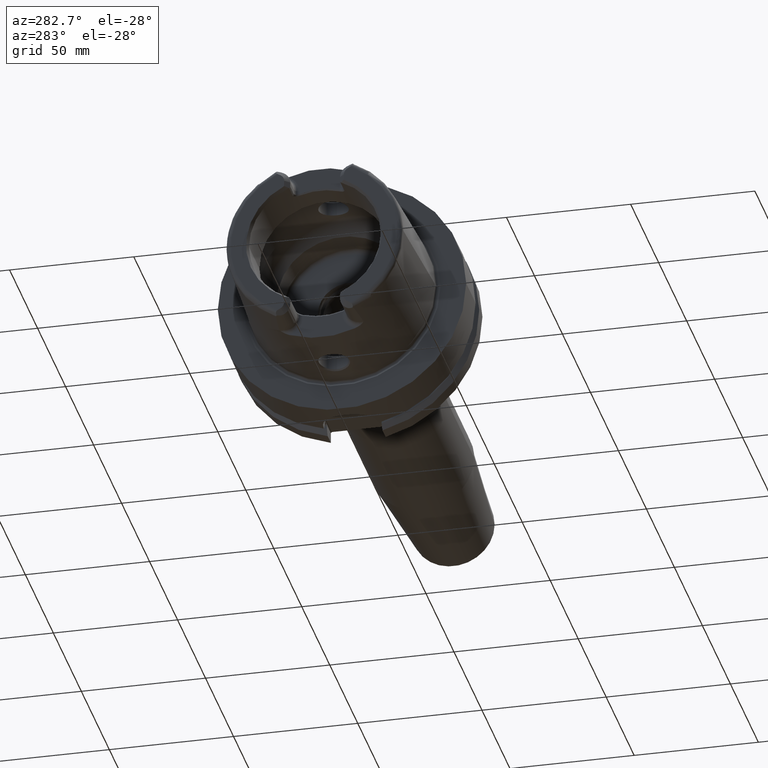
[diagram: clean part render]
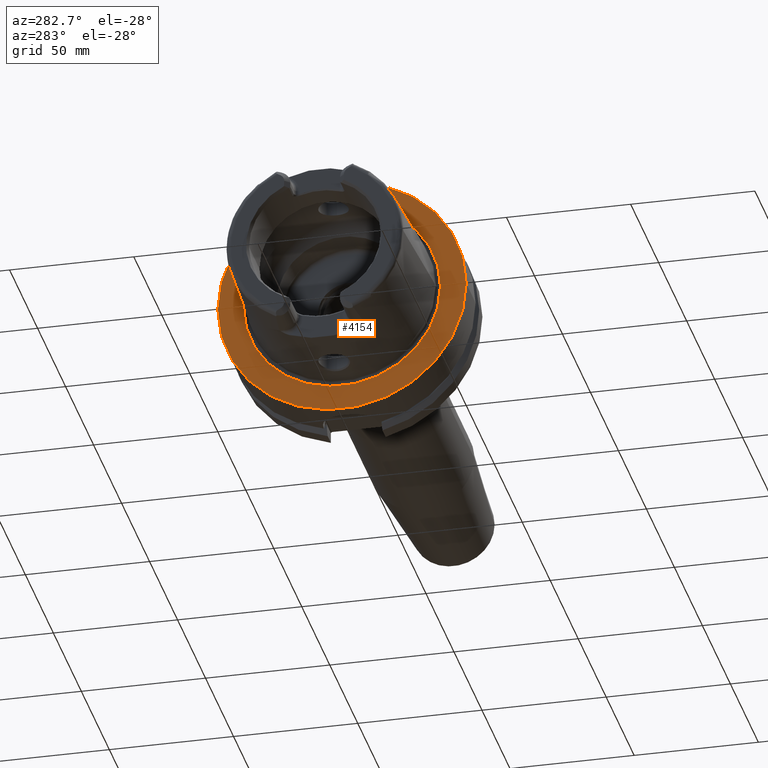
[diagram: same view with one face highlighted and labeled with its STEP entity id]
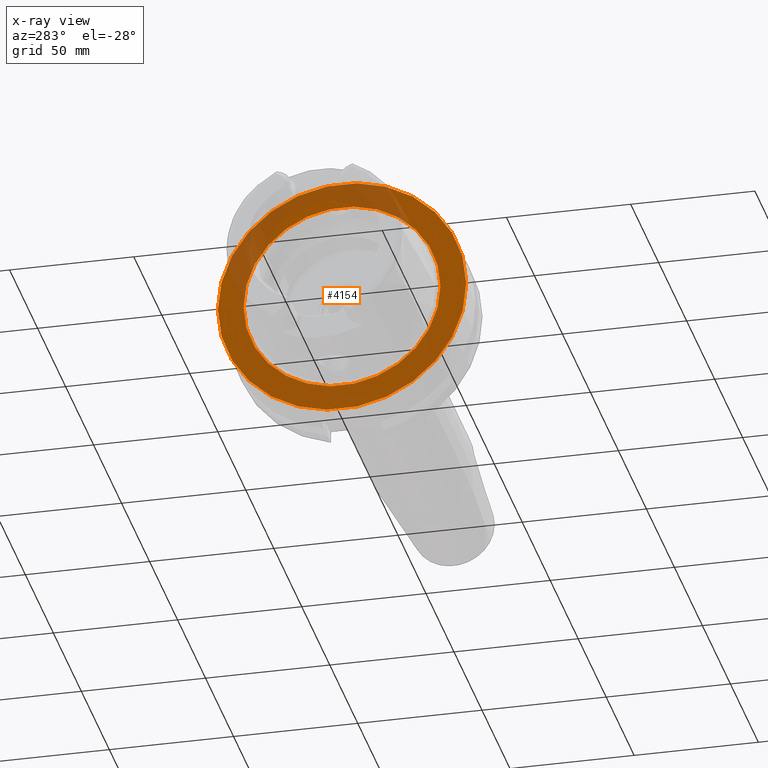
[diagram: x-ray of the same camera — body ghosted, the highlighted face saturated]
A machine part, auxiliary view. The second image highlights one B-rep face of the part: STEP entity #4154.
The next image is the same camera in x-ray: the body ghosted, the highlighted face saturated — about 25% of this face is hidden behind the body in this view.
In plain terms, the highlighted planar face has unit normal (1, 0, 0).
Its self-contained STEP definition (entity closure, byte-faithful):
#905=CARTESIAN_POINT('',(2.842170943040E-14,0.E0,0.E0));
#906=DIRECTION('',(1.E0,0.E0,0.E0));
#907=DIRECTION('',(0.E0,1.E0,0.E0));
#908=AXIS2_PLACEMENT_3D('',#905,#906,#907);
#910=CARTESIAN_POINT('',(2.842170943040E-14,0.E0,0.E0));
#911=DIRECTION('',(-1.E0,0.E0,0.E0));
#912=DIRECTION('',(0.E0,1.E0,0.E0));
#913=AXIS2_PLACEMENT_3D('',#910,#911,#912);
#915=CARTESIAN_POINT('',(0.E0,0.E0,0.E0));
#916=DIRECTION('',(-1.E0,0.E0,0.E0));
#917=DIRECTION('',(0.E0,-1.E0,0.E0));
#918=AXIS2_PLACEMENT_3D('',#915,#916,#917);
#920=CARTESIAN_POINT('',(0.E0,0.E0,0.E0));
#921=DIRECTION('',(-1.E0,0.E0,0.E0));
#922=DIRECTION('',(0.E0,1.E0,0.E0));
#923=AXIS2_PLACEMENT_3D('',#920,#921,#922);
#2713=CARTESIAN_POINT('',(2.842170943040E-14,5.E1,0.E0));
#2714=CARTESIAN_POINT('',(2.842170943040E-14,-5.E1,0.E0));
#2715=VERTEX_POINT('',#2713);
#2716=VERTEX_POINT('',#2714);
#2741=CARTESIAN_POINT('',(0.E0,-3.963225E1,0.E0));
#2742=VERTEX_POINT('',#2741);
#2743=CARTESIAN_POINT('',(0.E0,3.963225E1,0.E0));
#2744=VERTEX_POINT('',#2743);
#4139=CARTESIAN_POINT('',(0.E0,0.E0,0.E0));
#4140=DIRECTION('',(1.E0,0.E0,0.E0));
#4141=DIRECTION('',(0.E0,-1.E0,0.E0));
#4142=AXIS2_PLACEMENT_3D('',#4139,#4140,#4141);
#4143=PLANE('',#4142);
#4145=ORIENTED_EDGE('',*,*,#4144,.T.);
#4147=ORIENTED_EDGE('',*,*,#4146,.F.);
#4148=EDGE_LOOP('',(#4145,#4147));
#4149=FACE_OUTER_BOUND('',#4148,.F.);
#4150=ORIENTED_EDGE('',*,*,#4134,.T.);
#4151=ORIENTED_EDGE('',*,*,#4118,.T.);
#4152=EDGE_LOOP('',(#4150,#4151));
#4153=FACE_BOUND('',#4152,.F.);
#4154=ADVANCED_FACE('',(#4149,#4153),#4143,.F.);
#909=CIRCLE('',#908,5.E1);
#914=CIRCLE('',#913,5.E1);
#919=CIRCLE('',#918,3.963225E1);
#924=CIRCLE('',#923,3.963225E1);
#4118=EDGE_CURVE('',#2744,#2742,#924,.T.);
#4134=EDGE_CURVE('',#2742,#2744,#919,.T.);
#4144=EDGE_CURVE('',#2715,#2716,#909,.T.);
#4146=EDGE_CURVE('',#2715,#2716,#914,.T.);